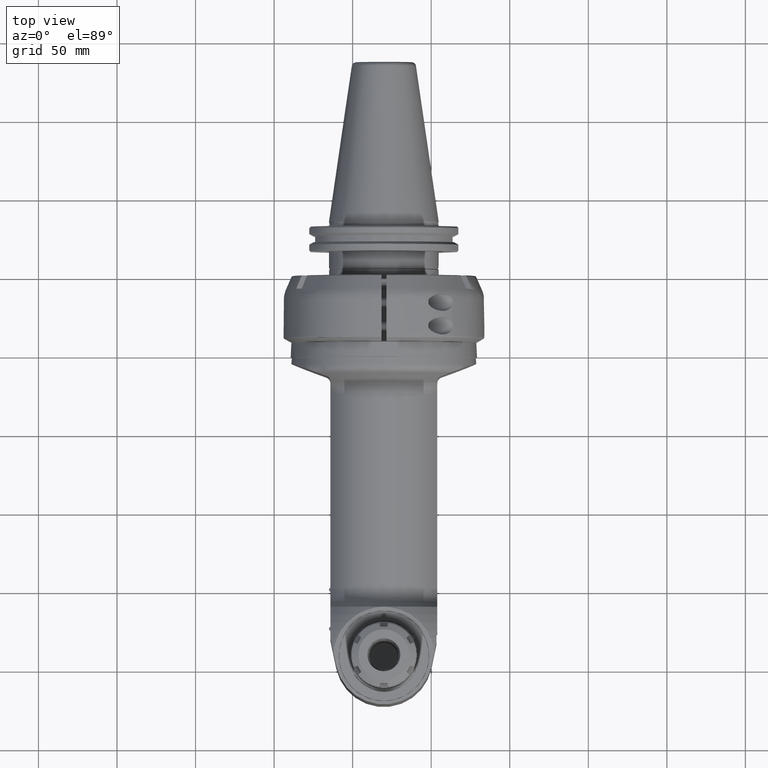
[diagram: clean part render]
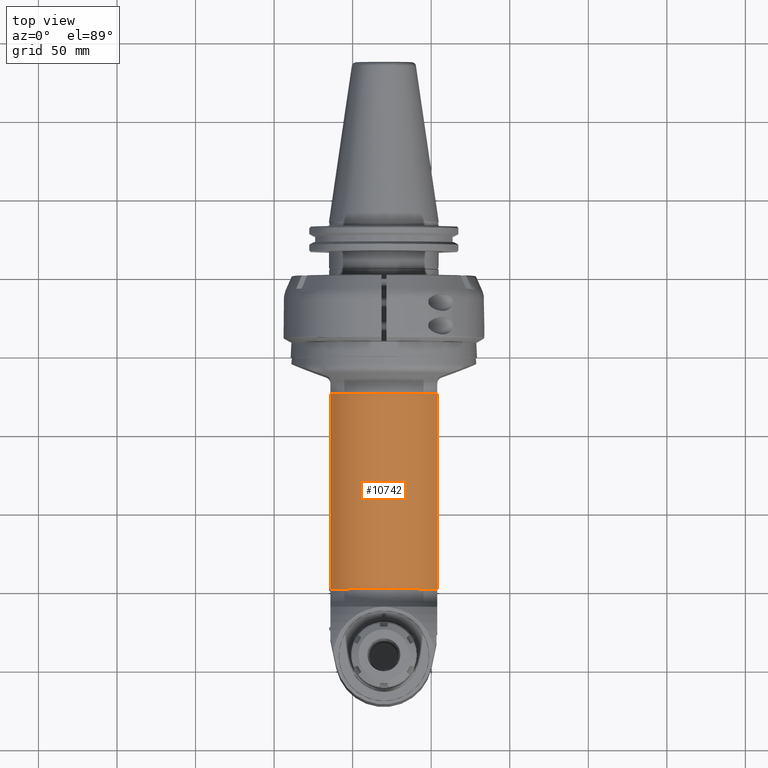
[diagram: same view with one face highlighted and labeled with its STEP entity id]
A machine part, top view. The second image highlights one B-rep face of the part: STEP entity #10742.
In plain terms, the highlighted cylindrical surface (partial cylindrical patch) has radius 38 mm, axis along (0, -1, -0).
Its self-contained STEP definition (entity closure, byte-faithful):
#1119=FACE_OUTER_BOUND('',#1814,.T.);
#1814=EDGE_LOOP('',(#7573,#7574,#7575,#7576));
#2496=LINE('',#16184,#3171);
#2504=LINE('',#16325,#3179);
#3171=VECTOR('',#12813,124.2601241953);
#3179=VECTOR('',#12837,124.2601241952);
#3872=CIRCLE('',#11455,38.);
#3924=CIRCLE('',#11563,38.);
#4460=VERTEX_POINT('',#16130);
#4461=VERTEX_POINT('',#16143);
#4466=VERTEX_POINT('',#16183);
#4498=VERTEX_POINT('',#16310);
#5573=EDGE_CURVE('',#4460,#4461,#3872,.T.);
#5579=EDGE_CURVE('',#4466,#4461,#2496,.T.);
#5613=EDGE_CURVE('',#4460,#4498,#2504,.T.);
#5747=EDGE_CURVE('',#4466,#4498,#3924,.T.);
#7573=ORIENTED_EDGE('',*,*,#5613,.T.);
#7574=ORIENTED_EDGE('',*,*,#5747,.F.);
#7575=ORIENTED_EDGE('',*,*,#5579,.T.);
#7576=ORIENTED_EDGE('',*,*,#5573,.F.);
#10521=CYLINDRICAL_SURFACE('',#11564,38.);
#10742=ADVANCED_FACE('',(#1119),#10521,.T.);
#11455=AXIS2_PLACEMENT_3D('',#16144,#12807,#12808);
#11563=AXIS2_PLACEMENT_3D('',#16775,#13068,#13069);
#11564=AXIS2_PLACEMENT_3D('',#16776,#13070,#13071);
#12807=DIRECTION('center_axis',(-1.,0.,0.));
#12808=DIRECTION('ref_axis',(0.,-0.44659375653888,-0.894736842105259));
#12813=DIRECTION('',(-1.,1.184808528101E-13,5.906888076875E-14));
#12837=DIRECTION('',(1.,0.,0.));
#13068=DIRECTION('center_axis',(1.,0.,0.));
#13069=DIRECTION('ref_axis',(0.,-0.44659375653888,0.894736842105259));
#13070=DIRECTION('center_axis',(1.,0.,0.));
#13071=DIRECTION('ref_axis',(0.,-1.,0.));
#16130=CARTESIAN_POINT('',(38.38902284374,-16.97056274848,-34.));
#16143=CARTESIAN_POINT('',(38.38902284374,-16.97056274848,34.));
#16144=CARTESIAN_POINT('Origin',(38.38902284374,0.,0.));
#16183=CARTESIAN_POINT('',(162.6491470389,-16.97056274848,34.));
#16184=CARTESIAN_POINT('',(162.6491470389,-16.97056274848,34.));
#16310=CARTESIAN_POINT('',(162.6491470389,-16.97056274848,-34.));
#16325=CARTESIAN_POINT('',(38.38902284374,-16.97056274848,-34.));
#16775=CARTESIAN_POINT('Origin',(162.6491470389,0.,0.));
#16776=CARTESIAN_POINT('Origin',(145.5928929284,0.,0.));